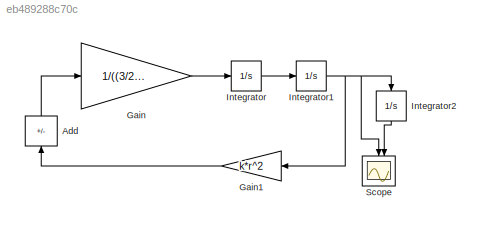
MODEL slx_eb489288c70c
KIND model
CONFIG AbsTol = auto
CONFIG EnableMultiTasking = off
CONFIG FixedStep = auto
CONFIG MaxStep = auto
CONFIG MinStep = auto
CONFIG RelTol = 1e-3
CONFIG SampleTimeConstraint = Unconstrained
CONFIG SolverName = VariableStepAuto
CONFIG StartTime = 0.0
CONFIG StopTime = 5
BLOCK [Sum] Add
  IconShape = rectangular
  Inputs = -
  NameLocation = right
BLOCK [Gain] Gain
  Gain = 1/((3/2)*m*r^2)
BLOCK [Gain] Gain1
  Gain = k*r^2
  NameLocation = top
BLOCK [Integrator] Integrator
BLOCK [Integrator] Integrator1
  InitialCondition = 2
BLOCK [Integrator] Integrator2
  NameLocation = left
BLOCK [Scope] Scope
  Floating = off
  NameLocation = left
  NumInputPorts = 2
  ScopeSpecificationString = Simulink.scopes.TimeScopeBlockCfg('CurrentConfiguration', extmgr.ConfigurationSet(extmgr.Configuration('Core','General UI',true),extmgr.Configuration('Core','Source UI',true),extmgr.Configuration('Sources','WiredSimulink',true),extmgr.Configuration('Visuals','Time Domain',true,'SerializedDisplays',{struct('MinYLimReal','-2.49943','MaxYLimReal','2.49994','YLabelReal','','MinYLimMag','0.00000','MaxY...<+2128ch>
LINE Add:1 -> Gain:1
LINE Gain1:1 -> Add:1
LINE Gain:1 -> Integrator:1
NET Integrator1:1 -> Gain1:1, Integrator2:1, Scope:1
LINE Integrator2:1 -> Scope:2
LINE Integrator:1 -> Integrator1:1
note: NET lines group one-source signal fan-out (src -> all destinations, sorted); 1:1 wires keep LINE
